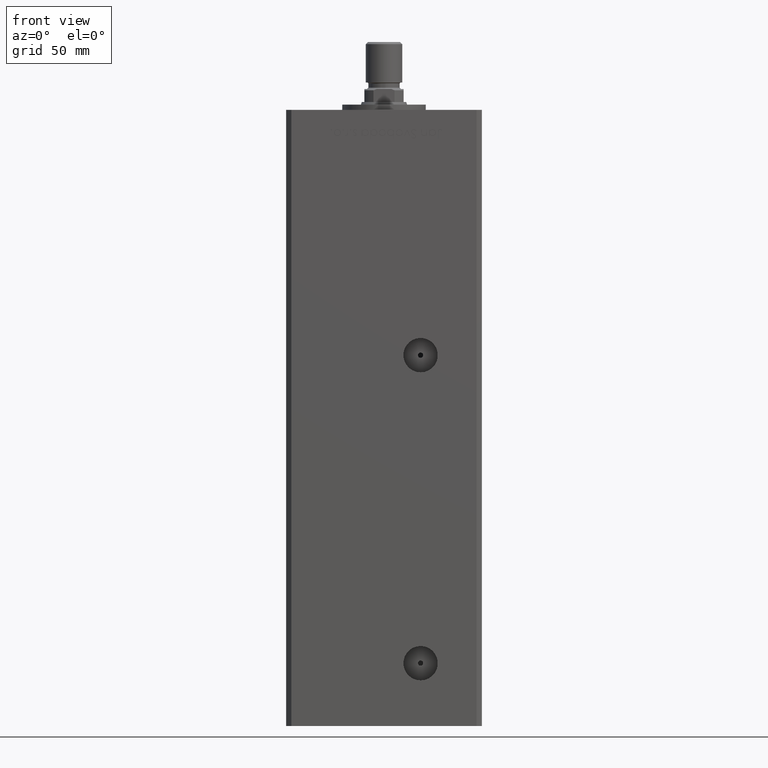
[diagram: clean part render]
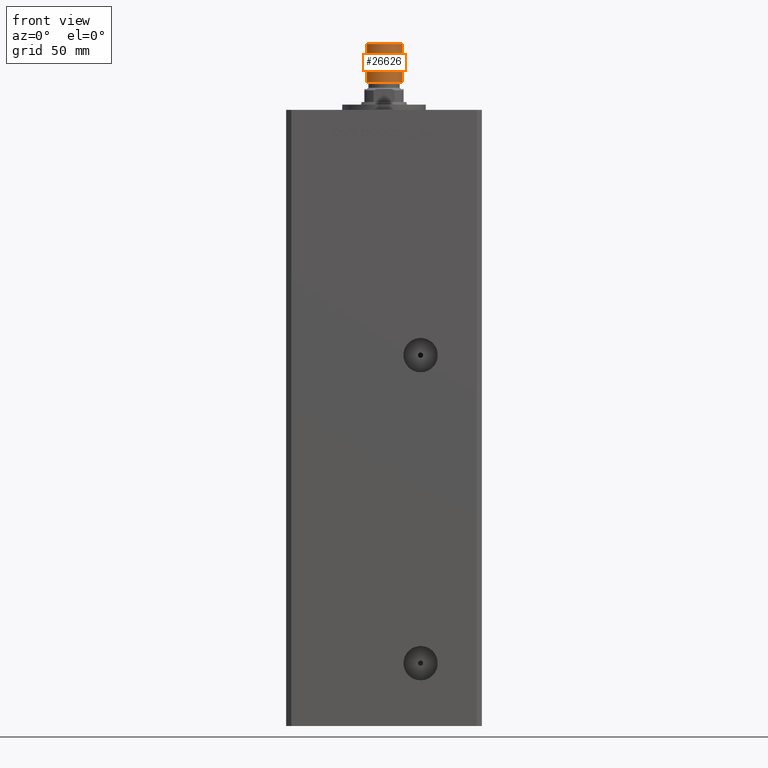
[diagram: same view with one face highlighted and labeled with its STEP entity id]
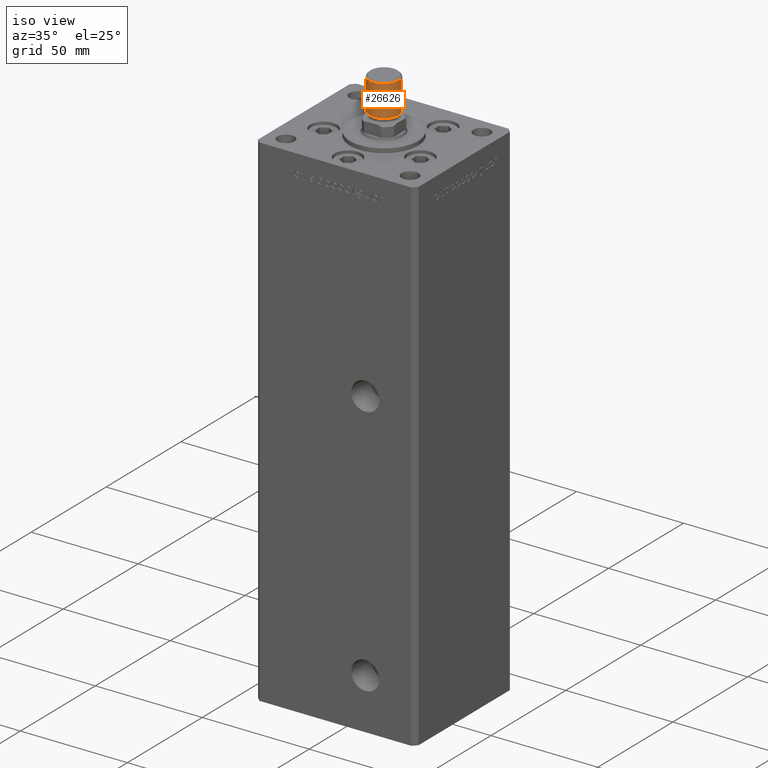
[diagram: same view with one face highlighted and labeled with its STEP entity id]
A machine part, front view. The second image highlights one B-rep face of the part: STEP entity #26626.
A second angle (iso view) of the same face is appended — the face is thin or edge-on in the first view.
In plain terms, the highlighted cylindrical surface (edge-blend (fillet) strip) has radius 7 mm, axis along (0, 0, 1).
Its self-contained STEP definition (entity closure, byte-faithful):
#470 = DIRECTION ( 'NONE',  ( -1.000000000000000000, 0.000000000000000000, 0.000000000000000000 ) ) ;
#709 = EDGE_CURVE ( 'NONE', #46654, #29036, #15623, .T. ) ;
#898 = DIRECTION ( 'NONE',  ( 1.000000000000000000, 0.000000000000000000, 0.000000000000000000 ) ) ;
#1825 = ORIENTED_EDGE ( 'NONE', *, *, #10567, .F. ) ;
#2391 = DIRECTION ( 'NONE',  ( -0.000000000000000000, -0.000000000000000000, 1.000000000000000000 ) ) ;
#4976 = CARTESIAN_POINT ( 'NONE',  ( 0.000000000000000000, 0.000000000000000000, 15.50000000000000000 ) ) ;
#6356 = AXIS2_PLACEMENT_3D ( 'NONE', #42894, #2391, #13817 ) ;
#8494 = EDGE_CURVE ( 'NONE', #29036, #22888, #30841, .T. ) ;
#9115 = CARTESIAN_POINT ( 'NONE',  ( 0.000000000000000000, 0.000000000000000000, 15.50000000000000000 ) ) ;
#10567 = EDGE_CURVE ( 'NONE', #45595, #22888, #33896, .T. ) ;
#12321 = VECTOR ( 'NONE', #19073, 1000.000000000000000 ) ;
#12838 = DIRECTION ( 'NONE',  ( 0.000000000000000000, 0.000000000000000000, 1.000000000000000000 ) ) ;
#13817 = DIRECTION ( 'NONE',  ( 1.000000000000000000, 0.000000000000000000, 0.000000000000000000 ) ) ;
#14035 = VECTOR ( 'NONE', #50043, 1000.000000000000000 ) ;
#15424 = ORIENTED_EDGE ( 'NONE', *, *, #8494, .T. ) ;
#15623 = LINE ( 'NONE', #23306, #12321 ) ;
#19073 = DIRECTION ( 'NONE',  ( -0.000000000000000000, -0.000000000000000000, -1.000000000000000000 ) ) ;
#19442 = AXIS2_PLACEMENT_3D ( 'NONE', #4976, #28526, #470 ) ;
#22888 = VERTEX_POINT ( 'NONE', #23694 ) ;
#23306 = CARTESIAN_POINT ( 'NONE',  ( -7.000000000000000000, 0.000000000000000000, 15.50000000000000000 ) ) ;
#23694 = CARTESIAN_POINT ( 'NONE',  ( 7.000000000000000000, 8.572527594031473190E-16, 0.8000000000000020428 ) ) ;
#23772 = EDGE_CURVE ( 'NONE', #46654, #45595, #51479, .T. ) ;
#24133 = CARTESIAN_POINT ( 'NONE',  ( -7.000000000000000000, 0.000000000000000000, 15.50000000000000000 ) ) ;
#24826 = FACE_OUTER_BOUND ( 'NONE', #27434, .T. ) ;
#26626 = ADVANCED_FACE ( 'NONE', ( #24826 ), #29055, .T. ) ;
#27434 = EDGE_LOOP ( 'NONE', ( #1825, #30740, #50819, #15424 ) ) ;
#28526 = DIRECTION ( 'NONE',  ( -0.000000000000000000, -0.000000000000000000, -1.000000000000000000 ) ) ;
#29036 = VERTEX_POINT ( 'NONE', #39252 ) ;
#29055 = CYLINDRICAL_SURFACE ( 'NONE', #19442, 7.000000000000000000 ) ;
#30740 = ORIENTED_EDGE ( 'NONE', *, *, #23772, .F. ) ;
#30841 = CIRCLE ( 'NONE', #6356, 7.000000000000000000 ) ;
#33896 = LINE ( 'NONE', #46592, #14035 ) ;
#39252 = CARTESIAN_POINT ( 'NONE',  ( -7.000000000000000000, 0.000000000000000000, 0.8000000000000020428 ) ) ;
#42894 = CARTESIAN_POINT ( 'NONE',  ( 0.000000000000000000, 0.000000000000000000, 0.8000000000000020428 ) ) ;
#44502 = CARTESIAN_POINT ( 'NONE',  ( 7.000000000000000000, 8.572527594031473190E-16, 15.50000000000000000 ) ) ;
#44693 = AXIS2_PLACEMENT_3D ( 'NONE', #9115, #12838, #898 ) ;
#45595 = VERTEX_POINT ( 'NONE', #44502 ) ;
#46592 = CARTESIAN_POINT ( 'NONE',  ( 7.000000000000000000, 8.572527594031473190E-16, 15.50000000000000000 ) ) ;
#46654 = VERTEX_POINT ( 'NONE', #24133 ) ;
#50043 = DIRECTION ( 'NONE',  ( -0.000000000000000000, -0.000000000000000000, -1.000000000000000000 ) ) ;
#50819 = ORIENTED_EDGE ( 'NONE', *, *, #709, .T. ) ;
#51479 = CIRCLE ( 'NONE', #44693, 7.000000000000000000 ) ;